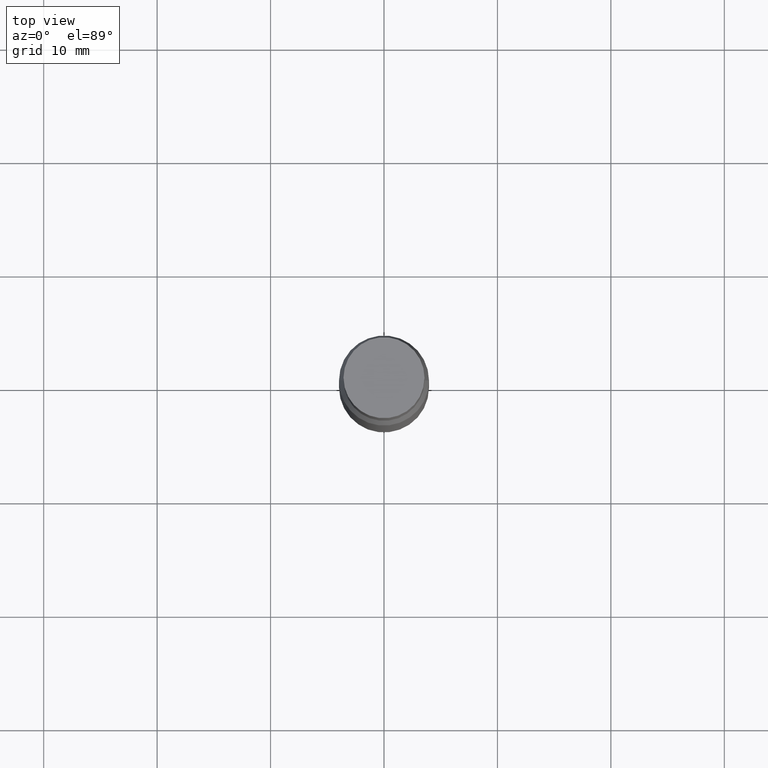
[diagram: clean part render]
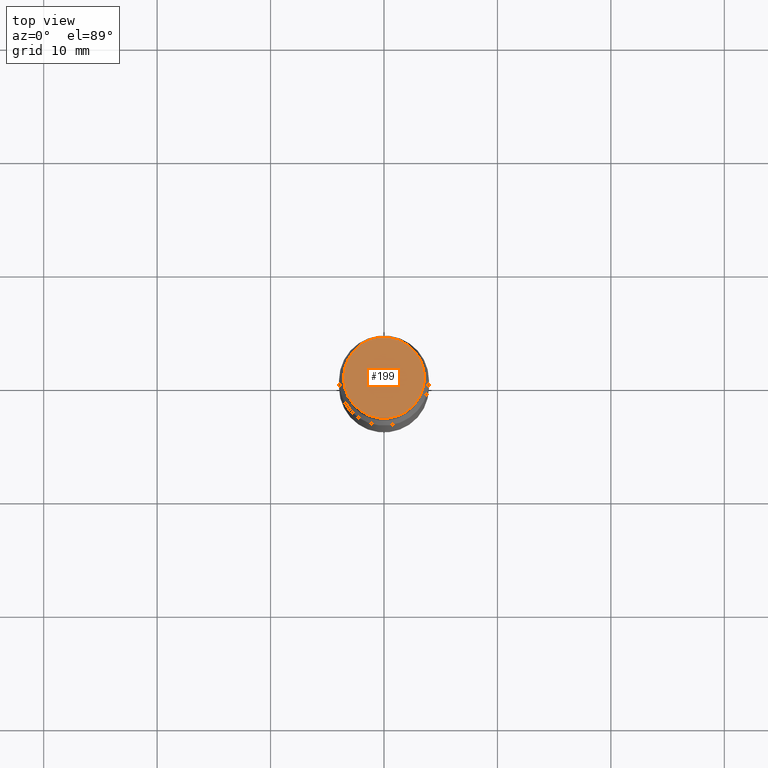
[diagram: same view with one face highlighted and labeled with its STEP entity id]
A machine part, top view. The second image highlights one B-rep face of the part: STEP entity #199.
In plain terms, the highlighted planar face has unit normal (-0, -0, -1).
Its self-contained STEP definition (entity closure, byte-faithful):
#38 = EDGE_CURVE ( 'NONE', #193, #849, #745, .T. ) ;
#49 = CARTESIAN_POINT ( 'NONE',  ( -0.1406000000000000028, 9.203943989387182081E-17, 5.463695987328557991E-16 ) ) ;
#97 = FACE_OUTER_BOUND ( 'NONE', #376, .T. ) ;
#115 = CIRCLE ( 'NONE', #154, 0.1406000000000000028 ) ;
#124 = DIRECTION ( 'NONE',  ( 1.000000000000000000, -6.982962677686266711E-15, 0.000000000000000000 ) ) ;
#132 = EDGE_CURVE ( 'NONE', #849, #193, #115, .T. ) ;
#154 = AXIS2_PLACEMENT_3D ( 'NONE', #974, #598, #366 ) ;
#193 = VERTEX_POINT ( 'NONE', #387 ) ;
#195 = AXIS2_PLACEMENT_3D ( 'NONE', #231, #609, #705 ) ;
#199 = ADVANCED_FACE ( 'NONE', ( #97 ), #906, .F. ) ;
#231 = CARTESIAN_POINT ( 'NONE',  ( 6.155585888104581162E-29, 6.042774635992640075E-17, 5.463695987328526437E-16 ) ) ;
#366 = DIRECTION ( 'NONE',  ( 1.000000000000000000, -6.982962677686266711E-15, 0.000000000000000000 ) ) ;
#376 = EDGE_LOOP ( 'NONE', ( #946, #576 ) ) ;
#387 = CARTESIAN_POINT ( 'NONE',  ( 0.1406000000000000028, -9.813998573352146072E-16, 5.463695987328526437E-16 ) ) ;
#501 = CARTESIAN_POINT ( 'NONE',  ( 6.113672015462842613E-29, 4.046951474745467748E-19, 5.463695987328526437E-16 ) ) ;
#576 = ORIENTED_EDGE ( 'NONE', *, *, #132, .T. ) ;
#598 = DIRECTION ( 'NONE',  ( 2.445468806185136597E-29, 3.491805094961124077E-15, 1.000000000000000000 ) ) ;
#609 = DIRECTION ( 'NONE',  ( -2.438088387897959208E-29, -3.491805094961123683E-15, -1.000000000000000000 ) ) ;
#705 = DIRECTION ( 'NONE',  ( 1.000000000000000000, -6.982962677686265922E-15, 2.260776888683160832E-33 ) ) ;
#745 = CIRCLE ( 'NONE', #867, 0.1406000000000000028 ) ;
#797 = DIRECTION ( 'NONE',  ( 2.445468806185136597E-29, 3.491805094961124077E-15, 1.000000000000000000 ) ) ;
#849 = VERTEX_POINT ( 'NONE', #49 ) ;
#867 = AXIS2_PLACEMENT_3D ( 'NONE', #501, #797, #124 ) ;
#906 = PLANE ( 'NONE',  #195 ) ;
#946 = ORIENTED_EDGE ( 'NONE', *, *, #38, .T. ) ;
#974 = CARTESIAN_POINT ( 'NONE',  ( 6.113672015462842613E-29, 4.046951474745467748E-19, 5.463695987328526437E-16 ) ) ;